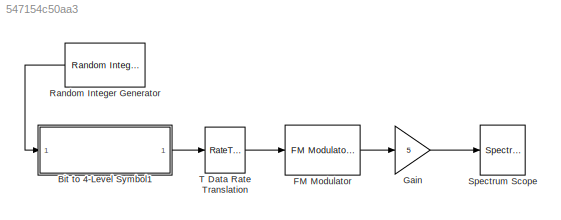
MODEL slx_547154c50aa3
KIND model
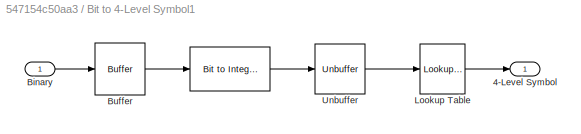
BLOCK [SubSystem] Bit to 4-Level Symbol1
  Ports = [1, 1]
  RequestExecContextInheritance = off
BLOCK [Reference] Bit to 4-Level Symbol1/   REF=commutil2/Bit to Integer
Converter
  Ports = [1, 1]
  SourceBlock = commutil2/Bit to Integer\nConverter
  SourceType = Bit to Integer Converter
  bitOrder = MSB first
  nbits = 2
  outDtype = Inherit via internal rule
  outDtypeSigned = Inherit via internal rule
  signedOutputValues = Unsigned
BLOCK [Outport] Bit to 4-Level Symbol1/4-Level Symbol
  IconDisplay = Port number
BLOCK [Inport] Bit to 4-Level Symbol1/Binary
  IconDisplay = Port number
BLOCK [Buffer] Bit to 4-Level Symbol1/Buffer
  N = 2
  TreatMby1Signals = One channel
BLOCK [Lookup_n-D] Bit to 4-Level Symbol1/Lookup Table
  BreakpointsForDimension1 = [0, 1, 2, 3]
  BreakpointsForDimension1DataTypeStr = double
  BreakpointsForDimension3 = [5, 7]
  IndexSearchMethod = Linear search
  InternalRulePriority = Speed
  NumberOfTableDimensions = 1
  OutDataTypeStr = double
  Ports = [1, 1]
  RndMeth = Simplest
  Table = [-3, -1, 1, 3]
  TableDataTypeStr = double
BLOCK [Unbuffer] Bit to 4-Level Symbol1/Unbuffer
  Ports = [1, 1]
  SampleBasedProcessing = Same as frame based
BLOCK [Reference] FM Modulator  REF=commanapbnd3/FM
Modulator
Passband
  Fc = 20000
  Kc = 1000
  Ph = -pi/2
  Ports = [1, 1]
  SourceBlock = commanapbnd3/FM\nModulator\nPassband
  SourceType = FM Modulator Passband
BLOCK [Gain] Gain
  Gain = 5
  OutDataTypeStr = Inherit: Inherit via internal rule
  ParamDataTypeStr = Inherit: Inherit via internal rule
  SaturateOnIntegerOverflow = off
BLOCK [Reference] Random Integer Generator  REF=commrandsrc2/Random Integer
Generator
  Ports = [0, 1]
  SourceBlock = commrandsrc2/Random Integer\nGenerator
  SourceType = Random Integer Generator
  Ts = 1e-3
  frameBased = off
  mul = 2
  orient = off
  outDataType = double
  sampPerFrame = 1
  seed = randseed
BLOCK [SpectrumAnalyzer] Spectrum Scope
  Ports = [1]
  ScopeSpecificationString = spbscopes.SpectrumAnalyzerBlockCfg('CurrentConfiguration', extmgr.ConfigurationSet(extmgr.Configuration('Core','General UI',true,'ShowNewAction',false,'ShowLoadConfigSet',false,'ShowSaveConfigSet',false,'ShowConfiguration',false,'ShowCloseAll',false,'DisplayFullSourceName',false,'MessageLogAutoOpenMode','for warn/fail messages','MessageLogDialogPosition',[20 520 450 500],'ShowMainToolbar',true,'Sh...<+8189ch>
BLOCK [RateTransition] T Data Rate Translation
  OutPortSampleTime = 2e-6
LINE Bit to 4-Level Symbol1/ :1 -> Bit to 4-Level Symbol1/Unbuffer:1
LINE Bit to 4-Level Symbol1/Binary:1 -> Bit to 4-Level Symbol1/Buffer:1
LINE Bit to 4-Level Symbol1/Buffer:1 -> Bit to 4-Level Symbol1/ :1
LINE Bit to 4-Level Symbol1/Lookup Table:1 -> Bit to 4-Level Symbol1/4-Level Symbol:1
LINE Bit to 4-Level Symbol1/Unbuffer:1 -> Bit to 4-Level Symbol1/Lookup Table:1
LINE Bit to 4-Level Symbol1:1 -> T Data Rate Translation:1
LINE FM Modulator:1 -> Gain:1
LINE Gain:1 -> Spectrum Scope:1
LINE Random Integer Generator:1 -> Bit to 4-Level Symbol1:1
LINE T Data Rate Translation:1 -> FM Modulator:1
